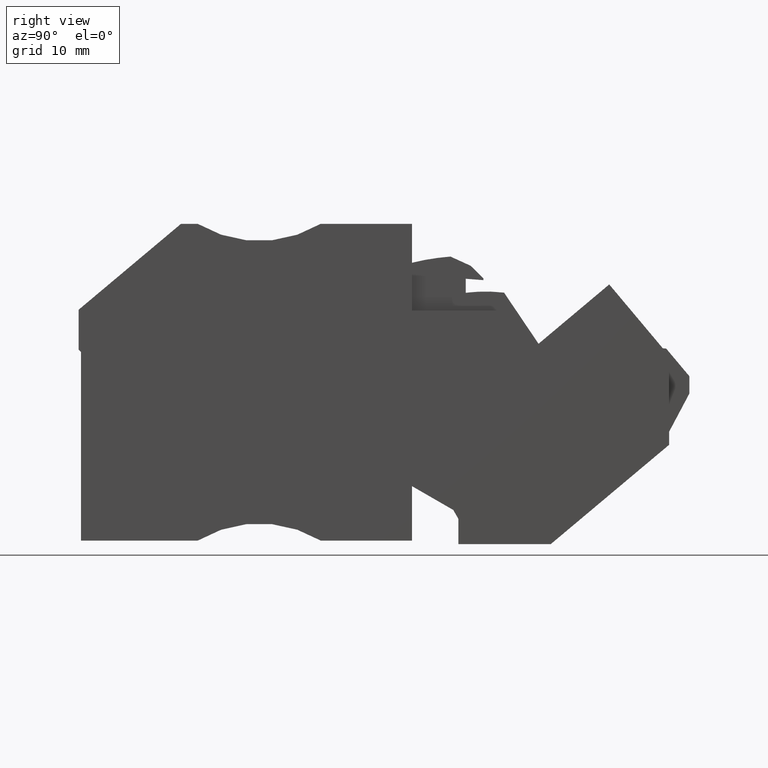
[diagram: clean part render]
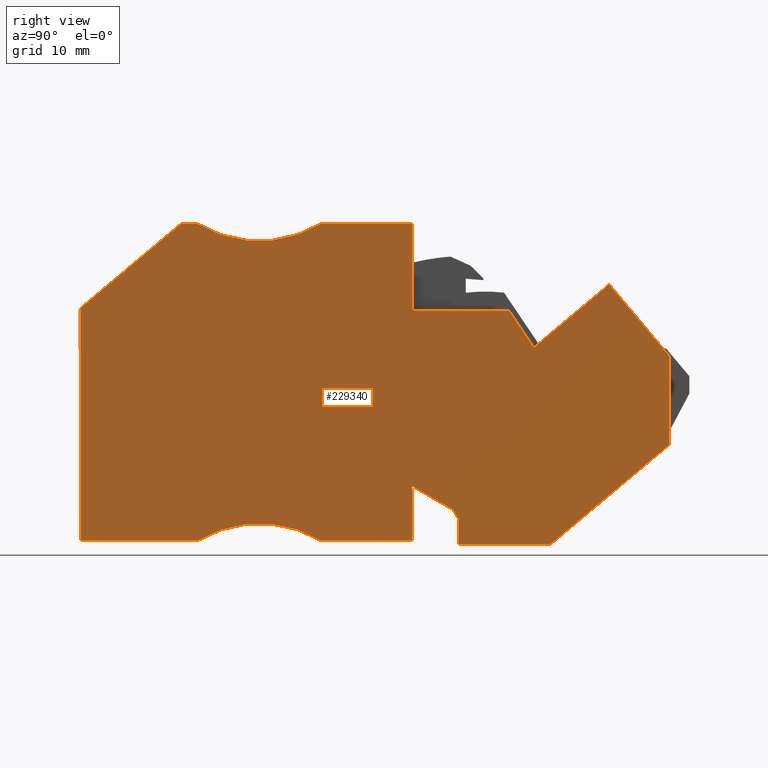
[diagram: same view with one face highlighted and labeled with its STEP entity id]
A machine part, right view. The second image highlights one B-rep face of the part: STEP entity #229340.
In plain terms, the highlighted planar face has unit normal (1, 0, -0).
Its self-contained STEP definition (entity closure, byte-faithful):
#224660=CARTESIAN_POINT('',(420.453158762934,690.486358051022,
86.0699999833062));
#224670=VERTEX_POINT('',#224660);
#224700=CARTESIAN_POINT('',(420.453158755641,686.45009140569,
86.0699999850193));
#224710=DIRECTION('',(-1.80696546614432E-9,-1.,4.24416371870361E-10));
#224720=VECTOR('',#224710,1.);
#224730=LINE('',#224700,#224720);
#224740=CARTESIAN_POINT('',(420.453158727605,670.934347653318,
86.0699999916044));
#224750=VERTEX_POINT('',#224740);
#224760=EDGE_CURVE('',#224670,#224750,#224730,.T.);
#225250=CARTESIAN_POINT('',(428.852625731658,697.534347657431,
86.069999978837));
#225260=VERTEX_POINT('',#225250);
#225310=CARTESIAN_POINT('',(418.258461659467,688.644788535414,
86.069999984474));
#225320=DIRECTION('',(0.766044444670996,0.642787607836916,
-4.07600435471174E-10));
#225330=VECTOR('',#225320,1.);
#225340=LINE('',#225310,#225330);
#225350=EDGE_CURVE('',#224670,#225260,#225340,.T.);
#225900=CARTESIAN_POINT('',(430.260883726975,697.534347655615,
86.0699999826098));
#225910=VERTEX_POINT('',#225900);
#225940=CARTESIAN_POINT('',(459.468902528003,697.534347620552,
86.0699999734498));
#225950=DIRECTION('',(1.,-1.20456350449778E-9,-1.7595690306274E-10));
#225960=VECTOR('',#225950,1.);
#225970=LINE('',#225940,#225960);
#225980=EDGE_CURVE('',#225260,#225910,#225970,.T.);
#226220=CARTESIAN_POINT('',(440.590572488686,697.534347629288,
86.0699999812866));
#226230=VERTEX_POINT('',#226220);
#226260=CARTESIAN_POINT('',(435.42572812966,706.097313397463,
86.0699999779707));
#226270=DIRECTION('',(1.28100595517667E-10,4.64504649617954E-10,1.));
#226280=DIRECTION('',(0.707106782058739,0.707106780314356,
-4.19035115678159E-10));
#226290=AXIS2_PLACEMENT_3D('',#226260,#226270,#226280);
#226300=CIRCLE('',#226290,10.);
#226310=EDGE_CURVE('',#225910,#226230,#226300,.T.);
#226520=CARTESIAN_POINT('',(448.253158738282,697.534347620058,
86.069999980305));
#226530=VERTEX_POINT('',#226520);
#226560=CARTESIAN_POINT('',(409.368902519557,697.534347666896,
86.0699999853057));
#226570=DIRECTION('',(-1.,1.20456378205352E-9,1.28100328869811E-10));
#226580=VECTOR('',#226570,1.);
#226590=LINE('',#226560,#226580);
#226600=EDGE_CURVE('',#226530,#226230,#226590,.T.);
#226830=CARTESIAN_POINT('',(448.253158729489,690.234347620129,
86.0699999836959));
#226840=VERTEX_POINT('',#226830);
#226870=CARTESIAN_POINT('',(448.253158724772,686.318603597879,
86.0699999855148));
#226880=DIRECTION('',(-1.20456361551975E-9,-1.,4.64504820525951E-10));
#226890=VECTOR('',#226880,1.);
#226900=LINE('',#226870,#226890);
#226910=EDGE_CURVE('',#226530,#226840,#226900,.T.);
#227170=CARTESIAN_POINT('',(456.411547086466,690.234347610302,
86.069999977086));
#227180=VERTEX_POINT('',#227170);
#227210=CARTESIAN_POINT('',(412.568902745118,690.234347663113,
86.0699999848004));
#227220=DIRECTION('',(-1.,1.20456478125426E-9,1.75956911828149E-10));
#227230=VECTOR('',#227220,1.);
#227240=LINE('',#227210,#227230);
#227250=EDGE_CURVE('',#227180,#226840,#227240,.T.);
#227420=CARTESIAN_POINT('',(471.149558069719,668.384347713638,
86.0699999837662));
#227430=DIRECTION('',(0.559192902426276,-0.829037573259547,
2.53463132922706E-10));
#227440=VECTOR('',#227430,1.);
#227450=LINE('',#227420,#227440);
#227460=CARTESIAN_POINT('',(458.497798352762,687.141352908887,
86.0699999780317));
#227470=VERTEX_POINT('',#227460);
#227480=EDGE_CURVE('',#227180,#227470,#227450,.T.);
#227840=CARTESIAN_POINT('',(469.853158712177,678.98136284311,
86.0699999794969));
#227850=VERTEX_POINT('',#227840);
#227880=CARTESIAN_POINT('',(469.853158747034,707.918603566855,
86.0699999672154));
#227890=DIRECTION('',(1.20455911911653E-9,1.,-4.24416471219152E-10));
#227900=VECTOR('',#227890,1.);
#227910=LINE('',#227880,#227900);
#227920=CARTESIAN_POINT('',(469.853158721171,686.448039208388,
86.0699999763279));
#227930=VERTEX_POINT('',#227920);
#227940=EDGE_CURVE('',#227850,#227930,#227910,.T.);
#228220=CARTESIAN_POINT('',(459.905573287453,670.634347605794,
86.0699999847898));
#228230=VERTEX_POINT('',#228220);
#228260=CARTESIAN_POINT('',(447.053267502297,659.849982592281,
86.0699999916283));
#228270=DIRECTION('',(-0.766044444016711,-0.642787608616663,
4.07600244682758E-10));
#228280=VECTOR('',#228270,1.);
#228290=LINE('',#228260,#228280);
#228300=EDGE_CURVE('',#227850,#228230,#228290,.T.);
#228440=CARTESIAN_POINT('',(434.418902608786,672.484347515457,
86.0699999884892));
#228450=DIRECTION('',(1.75956914421888E-10,4.2441642785003E-10,1.));
#228460=DIRECTION('',(0.707106780334796,-0.707106782038299,
1.75687407306717E-10));
#228470=AXIS2_PLACEMENT_3D('',#228440,#228450,#228460);
#228480=PLANE('',#228470);
#228490=CARTESIAN_POINT('',(448.25315871175,675.507552698788,
86.0699999847718));
#228500=VERTEX_POINT('',#228490);
#228510=CARTESIAN_POINT('',(448.253158706241,670.934347619831,
86.0699999926609));
#228520=VERTEX_POINT('',#228510);
#228530=EDGE_CURVE('',#228500,#228520,#226900,.T.);
#228540=ORIENTED_EDGE('',*,*,#228530,.F.);
#228550=CARTESIAN_POINT('',(435.968902484964,670.934347634628,
86.0699999942345));
#228560=DIRECTION('',(1.,-1.20456572494381E-9,-1.28100291599098E-10));
#228570=VECTOR('',#228560,1.);
#228580=LINE('',#228550,#228570);
#228590=CARTESIAN_POINT('',(440.590572458673,670.934347629077,
86.0699999936425));
#228600=VERTEX_POINT('',#228590);
#228610=EDGE_CURVE('',#228600,#228520,#228580,.T.);
#228620=ORIENTED_EDGE('',*,*,#228610,.T.);
#228630=CARTESIAN_POINT('',(435.425728078504,662.371381873649,
86.0699999982817));
#228640=DIRECTION('',(1.28100595517667E-10,4.64504649617954E-10,1.));
#228650=DIRECTION('',(0.707106782058739,0.707106780314356,
-4.19035115678159E-10));
#228660=AXIS2_PLACEMENT_3D('',#228630,#228640,#228650);
#228670=CIRCLE('',#228660,10.);
#228680=CARTESIAN_POINT('',(430.260883718938,670.934347641504,
86.0699999949657));
#228690=VERTEX_POINT('',#228680);
#228700=EDGE_CURVE('',#228600,#228690,#228670,.T.);
#228710=ORIENTED_EDGE('',*,*,#228700,.F.);
#228720=CARTESIAN_POINT('',(435.668902486983,670.934347634989,
86.0699999942729));
#228730=DIRECTION('',(1.,-1.20456572494381E-9,-1.2810032886981E-10));
#228740=VECTOR('',#228730,1.);
#228750=LINE('',#228720,#228740);
#228760=EDGE_CURVE('',#224750,#228690,#228750,.T.);
#228770=ORIENTED_EDGE('',*,*,#228760,.T.);
#228780=ORIENTED_EDGE('',*,*,#224760,.T.);
#228790=ORIENTED_EDGE('',*,*,#225350,.F.);
#228800=ORIENTED_EDGE('',*,*,#225980,.F.);
#228810=ORIENTED_EDGE('',*,*,#226310,.F.);
#228820=ORIENTED_EDGE('',*,*,#226600,.T.);
#228830=ORIENTED_EDGE('',*,*,#226910,.F.);
#228840=ORIENTED_EDGE('',*,*,#227250,.T.);
#228850=ORIENTED_EDGE('',*,*,#227480,.F.);
#228860=CARTESIAN_POINT('',(434.418902595965,666.936760419223,
86.0699999908436));
#228870=DIRECTION('',(0.766044443506207,0.642787609225058,
-4.07600241177514E-10));
#228880=VECTOR('',#228870,1.);
#228890=LINE('',#228860,#228880);
#228900=CARTESIAN_POINT('',(464.820007007377,692.446315852711,
86.0699999746677));
#228910=VERTEX_POINT('',#228900);
#228920=EDGE_CURVE('',#227470,#228910,#228890,.T.);
#228930=ORIENTED_EDGE('',*,*,#228920,.F.);
#228940=CARTESIAN_POINT('',(460.057092039662,698.122536883649,
86.0699999730967));
#228950=DIRECTION('',(-0.642787609225153,0.766044443506127,
-2.12018918733443E-10));
#228960=VECTOR('',#228950,1.);
#228970=LINE('',#228940,#228960);
#228980=EDGE_CURVE('',#227930,#228910,#228970,.T.);
#228990=ORIENTED_EDGE('',*,*,#228980,.T.);
#229000=ORIENTED_EDGE('',*,*,#227940,.T.);
#229010=ORIENTED_EDGE('',*,*,#228300,.F.);
#229020=CARTESIAN_POINT('',(436.268902486604,670.634347634266,
86.0699999889488));
#229030=DIRECTION('',(1.,-1.20456572494383E-9,-1.75956908679912E-10));
#229040=VECTOR('',#229030,1.);
#229050=LINE('',#229020,#229040);
#229060=CARTESIAN_POINT('',(452.153158701578,670.634347615133,
86.0699999861539));
#229070=VERTEX_POINT('',#229060);
#229080=EDGE_CURVE('',#229070,#228230,#229050,.T.);
#229090=ORIENTED_EDGE('',*,*,#229080,.T.);
#229100=CARTESIAN_POINT('',(452.15315872023,686.118603837677,
86.0699999795821));
#229110=DIRECTION('',(1.20456272734136E-9,1.,-4.24416190185318E-10));
#229120=VECTOR('',#229110,1.);
#229130=LINE('',#229100,#229120);
#229140=CARTESIAN_POINT('',(452.153158704134,672.755886646556,
86.0699999852534));
#229150=VERTEX_POINT('',#229140);
#229160=EDGE_CURVE('',#229070,#229150,#229130,.T.);
#229170=ORIENTED_EDGE('',*,*,#229160,.F.);
#229180=CARTESIAN_POINT('',(66.4180494937519,1340.86869592064,
86.0699997695683));
#229190=DIRECTION('',(-0.499999998956815,0.866025404386722,
-2.79576749618894E-10));
#229200=VECTOR('',#229190,1.);
#229210=LINE('',#229180,#229200);
#229220=CARTESIAN_POINT('',(451.72014600299,673.505886647346,
86.0699999850114));
#229230=VERTEX_POINT('',#229220);
#229240=EDGE_CURVE('',#229150,#229230,#229210,.T.);
#229250=ORIENTED_EDGE('',*,*,#229240,.F.);
#229260=CARTESIAN_POINT('',(443.998522773045,677.963967910137,
86.0699999844779));
#229270=DIRECTION('',(0.866025403182159,-0.50000000104318,
5.9824925418767E-11));
#229280=VECTOR('',#229270,1.);
#229290=LINE('',#229260,#229280);
#229300=EDGE_CURVE('',#228500,#229230,#229290,.T.);
#229310=ORIENTED_EDGE('',*,*,#229300,.T.);
#229320=EDGE_LOOP('',(#229310,#229250,#229170,#229090,#229010,#229000,
#228990,#228930,#228850,#228840,#228830,#228820,#228810,#228800,#228790,
#228780,#228770,#228710,#228620,#228540));
#229330=FACE_OUTER_BOUND('',#229320,.T.);
#229340=ADVANCED_FACE('',(#229330),#228480,.T.);